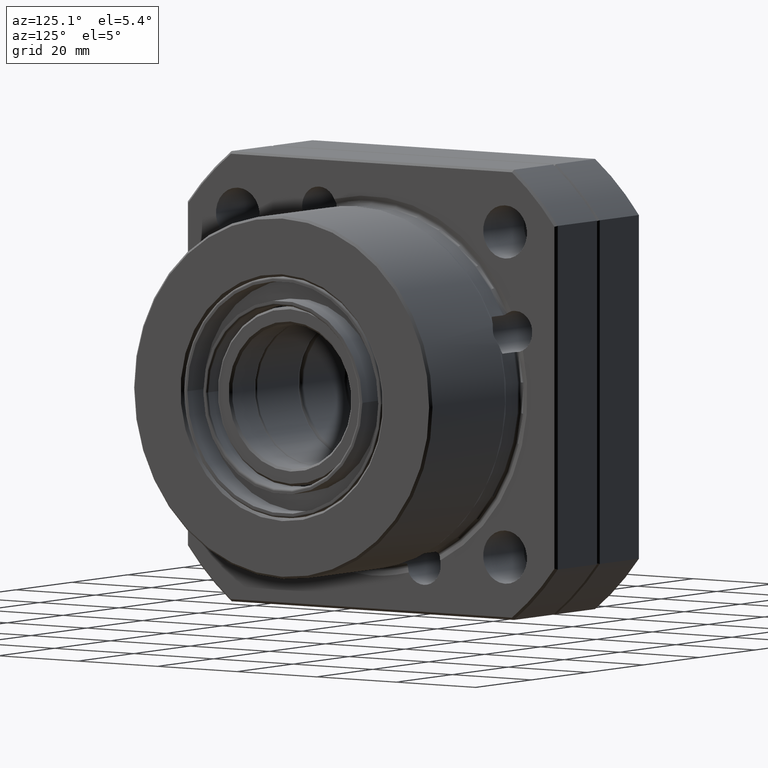
[diagram: clean part render]
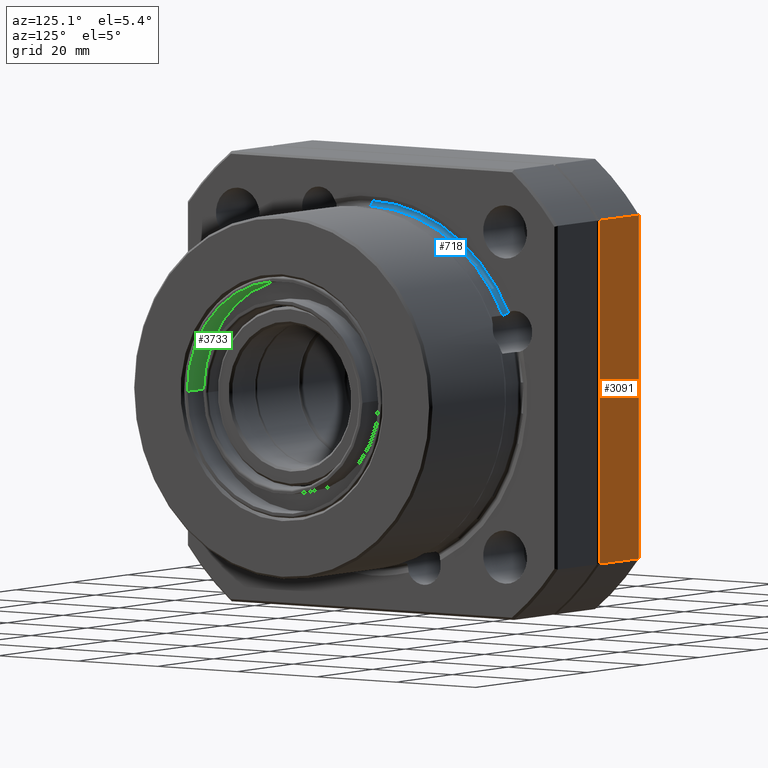
[diagram: same view with three faces highlighted in distinct colors, each labeled with its STEP entity id]
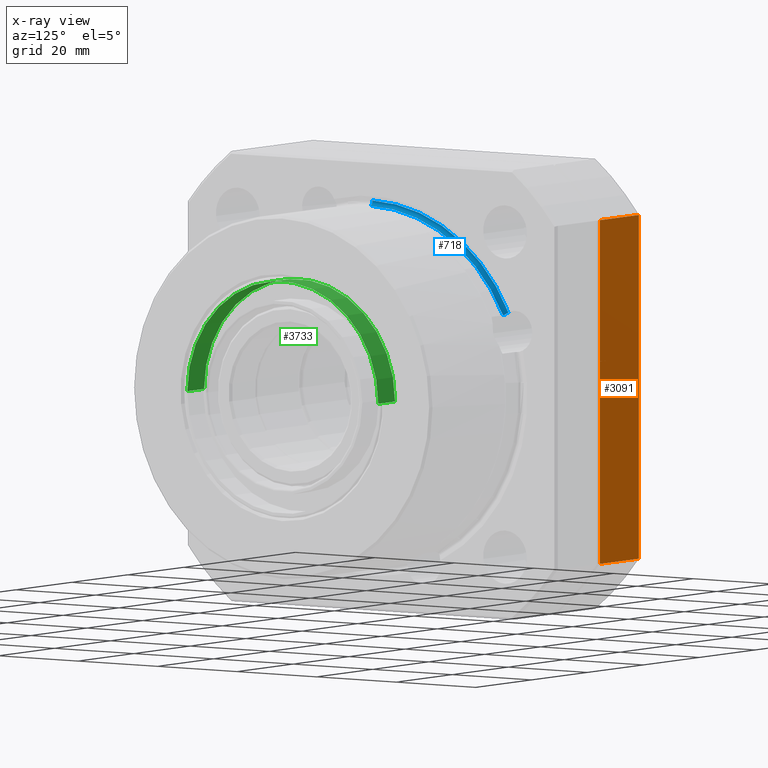
[diagram: x-ray of the same camera — body ghosted, the three highlighted faces saturated]
A machine part, auxiliary view with three faces highlighted in distinct colors.
The next image is the same camera in x-ray (body ghosted, the three faces saturated) — at least one of them is partly hidden behind the body in this view.
Their STEP definitions:

[orange] entity #3091 — the highlighted planar face has unit normal (0, 1, 0).
#2914 = VERTEX_POINT ( 'NONE', #11390 ) ;
#2916 = EDGE_CURVE ( 'NONE', #2917, #2914, #11389, .T. ) ;
#2917 = VERTEX_POINT ( 'NONE', #11385 ) ;
#2942 = EDGE_CURVE ( 'NONE', #2944, #2945, #11416, .T. ) ;
#2944 = VERTEX_POINT ( 'NONE', #11412 ) ;
#2945 = VERTEX_POINT ( 'NONE', #11411 ) ;
#3021 = ORIENTED_EDGE ( 'NONE', *, *, #3022, .T. ) ;
#3022 = EDGE_CURVE ( 'NONE', #2945, #2917, #11524, .T. ) ;
#3091 = ADVANCED_FACE ( 'NONE', ( #11659 ), #11658, .T. ) ;
#3092 = EDGE_LOOP ( 'NONE', ( #3093, #3094, #3096, #3021 ) ) ;
#3093 = ORIENTED_EDGE ( 'NONE', *, *, #2916, .T. ) ;
#3094 = ORIENTED_EDGE ( 'NONE', *, *, #3095, .T. ) ;
#3095 = EDGE_CURVE ( 'NONE', #2914, #2944, #11656, .T. ) ;
#3096 = ORIENTED_EDGE ( 'NONE', *, *, #2942, .T. ) ;
#11385 = CARTESIAN_POINT ( 'NONE',  ( -14.49999999999999600, 46.49999999999999300, 35.49647869859772000 ) ) ;
#11386 = DIRECTION ( 'NONE',  ( 1.000000000000000000, -0.0000000000000000000, -0.0000000000000000000 ) ) ;
#11387 = VECTOR ( 'NONE', #11386, 1000.000000000000000 ) ;
#11388 = CARTESIAN_POINT ( 'NONE',  ( -57.83312411036066400, 46.49999999999999300, 35.49647869859772000 ) ) ;
#11389 = LINE ( 'NONE', #11388, #11387 ) ;
#11390 = CARTESIAN_POINT ( 'NONE',  ( -0.4999999999999987200, 46.49999999999999300, 35.49647869859772000 ) ) ;
#11411 = CARTESIAN_POINT ( 'NONE',  ( -14.49999999999999600, 46.50000000000002100, -35.49647869859767700 ) ) ;
#11412 = CARTESIAN_POINT ( 'NONE',  ( -0.4999999999999987200, 46.50000000000002100, -35.49647869859767700 ) ) ;
#11413 = DIRECTION ( 'NONE',  ( -1.000000000000000000, 0.0000000000000000000, 0.0000000000000000000 ) ) ;
#11414 = VECTOR ( 'NONE', #11413, 1000.000000000000000 ) ;
#11415 = CARTESIAN_POINT ( 'NONE',  ( -57.83312411036066400, 46.50000000000002100, -35.49647869859767700 ) ) ;
#11416 = LINE ( 'NONE', #11415, #11414 ) ;
#11521 = DIRECTION ( 'NONE',  ( 0.0000000000000000000, -3.885780586188047900E-016, 1.000000000000000000 ) ) ;
#11522 = VECTOR ( 'NONE', #11521, 1000.000000000000000 ) ;
#11523 = CARTESIAN_POINT ( 'NONE',  ( -14.49999999999999600, 46.49999999999999300, 35.49647869859768400 ) ) ;
#11524 = LINE ( 'NONE', #11523, #11522 ) ;
#11650 = DIRECTION ( 'NONE',  ( 0.0000000000000000000, 3.885780586188047900E-016, -1.000000000000000000 ) ) ;
#11651 = VECTOR ( 'NONE', #11650, 1000.000000000000000 ) ;
#11652 = CARTESIAN_POINT ( 'NONE',  ( -0.5000000000000004400, 46.50000000000002100, -35.49647869859767700 ) ) ;
#11653 = DIRECTION ( 'NONE',  ( -1.000000000000000000, 0.0000000000000000000, 0.0000000000000000000 ) ) ;
#11654 = DIRECTION ( 'NONE',  ( 0.0000000000000000000, 1.000000000000000000, 3.885780586188047900E-016 ) ) ;
#11655 = AXIS2_PLACEMENT_3D ( 'NONE', #11657, #11654, #11653 ) ;
#11656 = LINE ( 'NONE', #11652, #11651 ) ;
#11657 = CARTESIAN_POINT ( 'NONE',  ( 3.000000000000000900, 46.50000000000002800, -46.49999999999997900 ) ) ;
#11658 = PLANE ( 'NONE',  #11655 ) ;
#11659 = FACE_OUTER_BOUND ( 'NONE', #3092, .T. ) ;

[blue] entity #718 — the highlighted toroidal blend (fillet) surface has major radius 38 mm and minor (blend) radius 0.8 mm.
#703 = EDGE_CURVE ( 'NONE', #712, #3981, #6820, .T. ) ;
#704 = ORIENTED_EDGE ( 'NONE', *, *, #706, .T. ) ;
#706 = EDGE_CURVE ( 'NONE', #4024, #4064, #6810, .T. ) ;
#710 = ORIENTED_EDGE ( 'NONE', *, *, #717, .T. ) ;
#711 = ORIENTED_EDGE ( 'NONE', *, *, #4059, .T. ) ;
#712 = VERTEX_POINT ( 'NONE', #6805 ) ;
#713 = EDGE_LOOP ( 'NONE', ( #714, #710, #704, #711 ) ) ;
#714 = ORIENTED_EDGE ( 'NONE', *, *, #703, .F. ) ;
#717 = EDGE_CURVE ( 'NONE', #712, #4024, #6798, .T. ) ;
#718 = ADVANCED_FACE ( 'NONE', ( #6793 ), #6791, .F. ) ;
#3981 = VERTEX_POINT ( 'NONE', #13202 ) ;
#4024 = VERTEX_POINT ( 'NONE', #13274 ) ;
#4059 = EDGE_CURVE ( 'NONE', #4064, #3981, #13389, .T. ) ;
#4064 = VERTEX_POINT ( 'NONE', #13371 ) ;
#6791 = TOROIDAL_SURFACE ( 'NONE', #6792, 38.00000000000000000, 0.8000000000000012700 ) ;
#6792 = AXIS2_PLACEMENT_3D ( 'NONE', #6851, #6850, #6849 ) ;
#6793 = FACE_OUTER_BOUND ( 'NONE', #713, .T. ) ;
#6794 = DIRECTION ( 'NONE',  ( 0.0000000000000000000, 0.0000000000000000000, -1.000000000000000000 ) ) ;
#6795 = DIRECTION ( 'NONE',  ( 0.0000000000000000000, -1.000000000000000000, 0.0000000000000000000 ) ) ;
#6796 = CARTESIAN_POINT ( 'NONE',  ( 15.50000000000000200, 0.0000000000000000000, 38.00000000000000000 ) ) ;
#6797 = AXIS2_PLACEMENT_3D ( 'NONE', #6796, #6795, #6794 ) ;
#6798 = CIRCLE ( 'NONE', #6797, 0.8000000000000020400 ) ;
#6805 = CARTESIAN_POINT ( 'NONE',  ( 14.72857557779164100, 0.0000000000000000000, 38.21190649074651400 ) ) ;
#6806 = DIRECTION ( 'NONE',  ( 0.0000000000000000000, 0.0000000000000000000, 1.000000000000000000 ) ) ;
#6807 = DIRECTION ( 'NONE',  ( -1.000000000000000000, -0.0000000000000000000, -0.0000000000000000000 ) ) ;
#6808 = CARTESIAN_POINT ( 'NONE',  ( 15.50000000000000000, 0.0000000000000000000, 0.0000000000000000000 ) ) ;
#6809 = AXIS2_PLACEMENT_3D ( 'NONE', #6808, #6807, #6806 ) ;
#6810 = CIRCLE ( 'NONE', #6809, 37.19999999999999600 ) ;
#6816 = DIRECTION ( 'NONE',  ( 0.0000000000000000000, 0.0000000000000000000, 1.000000000000000000 ) ) ;
#6817 = DIRECTION ( 'NONE',  ( -1.000000000000000000, -0.0000000000000000000, -0.0000000000000000000 ) ) ;
#6818 = CARTESIAN_POINT ( 'NONE',  ( 14.72857557779164100, 0.0000000000000000000, 0.0000000000000000000 ) ) ;
#6819 = AXIS2_PLACEMENT_3D ( 'NONE', #6818, #6817, #6816 ) ;
#6820 = CIRCLE ( 'NONE', #6819, 38.21190649074651400 ) ;
#6849 = DIRECTION ( 'NONE',  ( 0.0000000000000000000, 0.0000000000000000000, 1.000000000000000000 ) ) ;
#6850 = DIRECTION ( 'NONE',  ( -1.000000000000000000, -0.0000000000000000000, -0.0000000000000000000 ) ) ;
#6851 = CARTESIAN_POINT ( 'NONE',  ( 15.50000000000000200, 0.0000000000000000000, 0.0000000000000000000 ) ) ;
#13202 = CARTESIAN_POINT ( 'NONE',  ( 14.72857557779164100, 34.24543127983596900, 16.95288276711628200 ) ) ;
#13274 = CARTESIAN_POINT ( 'NONE',  ( 15.50000000000000000, 0.0000000000000000000, 37.19999999999999600 ) ) ;
#13371 = CARTESIAN_POINT ( 'NONE',  ( 15.50000000000000000, 33.39835521781711900, 16.38260872829807000 ) ) ;
#13377 = CARTESIAN_POINT ( 'NONE',  ( 14.72857557779164100, 34.24543127983596900, 16.95288276711628200 ) ) ;
#13378 = CARTESIAN_POINT ( 'NONE',  ( 14.69609153071940400, 34.14010370734758500, 16.89910087074257900 ) ) ;
#13379 = CARTESIAN_POINT ( 'NONE',  ( 14.69125710013439500, 34.03002299554271600, 16.83693038595180300 ) ) ;
#13380 = CARTESIAN_POINT ( 'NONE',  ( 14.73839298802602300, 33.82423475342908100, 16.70842850015910500 ) ) ;
#13381 = CARTESIAN_POINT ( 'NONE',  ( 14.78998061579860800, 33.72926831344591400, 16.64270172673195300 ) ) ;
#13382 = CARTESIAN_POINT ( 'NONE',  ( 14.93793556157217300, 33.57083666132000800, 16.52546010512198600 ) ) ;
#13383 = CARTESIAN_POINT ( 'NONE',  ( 15.03455004398603000, 33.50717991879479000, 16.47405112734042400 ) ) ;
#13384 = CARTESIAN_POINT ( 'NONE',  ( 15.25319002389434100, 33.42114844368501300, 16.40266025508705600 ) ) ;
#13385 = CARTESIAN_POINT ( 'NONE',  ( 15.37555623451081000, 33.39835521781711900, 16.38260872829807400 ) ) ;
#13386 = CARTESIAN_POINT ( 'NONE',  ( 15.50000000000000000, 33.39835521781711900, 16.38260872829807000 ) ) ;
#13389 = B_SPLINE_CURVE_WITH_KNOTS ( 'NONE', 3,
 ( #13386, #13385, #13384, #13383, #13382, #13381, #13380, #13379, #13378, #13377 ),
 .UNSPECIFIED., .F., .F.,
 ( 4, 2, 2, 2, 4 ),
 ( 1.971050346727776100E-007, 0.0003681326692533013400, 0.0007360682334719299300, 0.001104003797690558500, 0.001471939361909187100 ),
 .UNSPECIFIED. ) ;

[green] entity #3733 — the highlighted cylindrical surface (partial cylindrical patch) has radius 24 mm, axis along (1, 0, -0).
#3656 = EDGE_LOOP ( 'NONE', ( #3657, #3710, #3712, #3715 ) ) ;
#3657 = ORIENTED_EDGE ( 'NONE', *, *, #3658, .F. ) ;
#3658 = EDGE_CURVE ( 'NONE', #3659, #3660, #12587, .T. ) ;
#3659 = VERTEX_POINT ( 'NONE', #12578 ) ;
#3660 = VERTEX_POINT ( 'NONE', #12577 ) ;
#3661 = VERTEX_POINT ( 'NONE', #12576 ) ;
#3710 = ORIENTED_EDGE ( 'NONE', *, *, #3711, .T. ) ;
#3711 = EDGE_CURVE ( 'NONE', #3659, #3661, #12721, .T. ) ;
#3712 = ORIENTED_EDGE ( 'NONE', *, *, #3713, .T. ) ;
#3713 = EDGE_CURVE ( 'NONE', #3661, #3714, #12714, .T. ) ;
#3714 = VERTEX_POINT ( 'NONE', #12709 ) ;
#3715 = ORIENTED_EDGE ( 'NONE', *, *, #3716, .F. ) ;
#3716 = EDGE_CURVE ( 'NONE', #3660, #3714, #12708, .T. ) ;
#3733 = ADVANCED_FACE ( 'NONE', ( #12737 ), #12735, .F. ) ;
#12576 = CARTESIAN_POINT ( 'NONE',  ( 46.70000000000006000, 23.99999999999998900, 1.469673227756754800E-015 ) ) ;
#12577 = CARTESIAN_POINT ( 'NONE',  ( 40.70000000000006000, -23.99999999999998900, -4.408728476930480300E-015 ) ) ;
#12578 = CARTESIAN_POINT ( 'NONE',  ( 40.70000000000006000, 23.99999999999998900, 1.469673227756754800E-015 ) ) ;
#12579 = DIRECTION ( 'NONE',  ( 0.0000000000000000000, -1.000000000000000000, -1.836970198721029700E-016 ) ) ;
#12580 = DIRECTION ( 'NONE',  ( 1.000000000000000000, 0.0000000000000000000, -1.232595164407830900E-032 ) ) ;
#12581 = CARTESIAN_POINT ( 'NONE',  ( 40.70000000000006000, 3.081487911019577400E-030, -1.046069812031238100E-029 ) ) ;
#12582 = AXIS2_PLACEMENT_3D ( 'NONE', #12581, #12580, #12579 ) ;
#12587 = CIRCLE ( 'NONE', #12582, 23.99999999999998900 ) ;
#12705 = DIRECTION ( 'NONE',  ( 1.000000000000000000, 0.0000000000000000000, -1.232595164407830900E-032 ) ) ;
#12706 = VECTOR ( 'NONE', #12705, 1000.000000000000000 ) ;
#12707 = CARTESIAN_POINT ( 'NONE',  ( 95.34089506172846000, -23.99999999999998900, -4.408728476930480300E-015 ) ) ;
#12708 = LINE ( 'NONE', #12707, #12706 ) ;
#12709 = CARTESIAN_POINT ( 'NONE',  ( 46.70000000000006000, -23.99999999999998900, -4.408728476930480300E-015 ) ) ;
#12710 = DIRECTION ( 'NONE',  ( 0.0000000000000000000, -1.000000000000000000, -1.836970198721029700E-016 ) ) ;
#12711 = DIRECTION ( 'NONE',  ( 1.000000000000000000, 0.0000000000000000000, -1.232595164407830900E-032 ) ) ;
#12712 = CARTESIAN_POINT ( 'NONE',  ( 46.70000000000006000, 0.0000000000000000000, -1.053465383017685300E-029 ) ) ;
#12713 = AXIS2_PLACEMENT_3D ( 'NONE', #12712, #12711, #12710 ) ;
#12714 = CIRCLE ( 'NONE', #12713, 23.99999999999998900 ) ;
#12715 = DIRECTION ( 'NONE',  ( 1.000000000000000000, 0.0000000000000000000, -1.232595164407830900E-032 ) ) ;
#12716 = VECTOR ( 'NONE', #12715, 1000.000000000000000 ) ;
#12717 = CARTESIAN_POINT ( 'NONE',  ( 95.34089506172846000, 23.99999999999998900, 1.469673227756754000E-015 ) ) ;
#12721 = LINE ( 'NONE', #12717, #12716 ) ;
#12731 = DIRECTION ( 'NONE',  ( 0.0000000000000000000, -1.000000000000000000, -1.836970198721029700E-016 ) ) ;
#12732 = DIRECTION ( 'NONE',  ( 1.000000000000000000, 0.0000000000000000000, -1.232595164407830900E-032 ) ) ;
#12733 = CARTESIAN_POINT ( 'NONE',  ( 95.34089506172846000, -3.081487911019577400E-030, -1.113419915063240500E-029 ) ) ;
#12734 = AXIS2_PLACEMENT_3D ( 'NONE', #12733, #12732, #12731 ) ;
#12735 = CYLINDRICAL_SURFACE ( 'NONE', #12734, 23.99999999999998900 ) ;
#12737 = FACE_OUTER_BOUND ( 'NONE', #3656, .T. ) ;